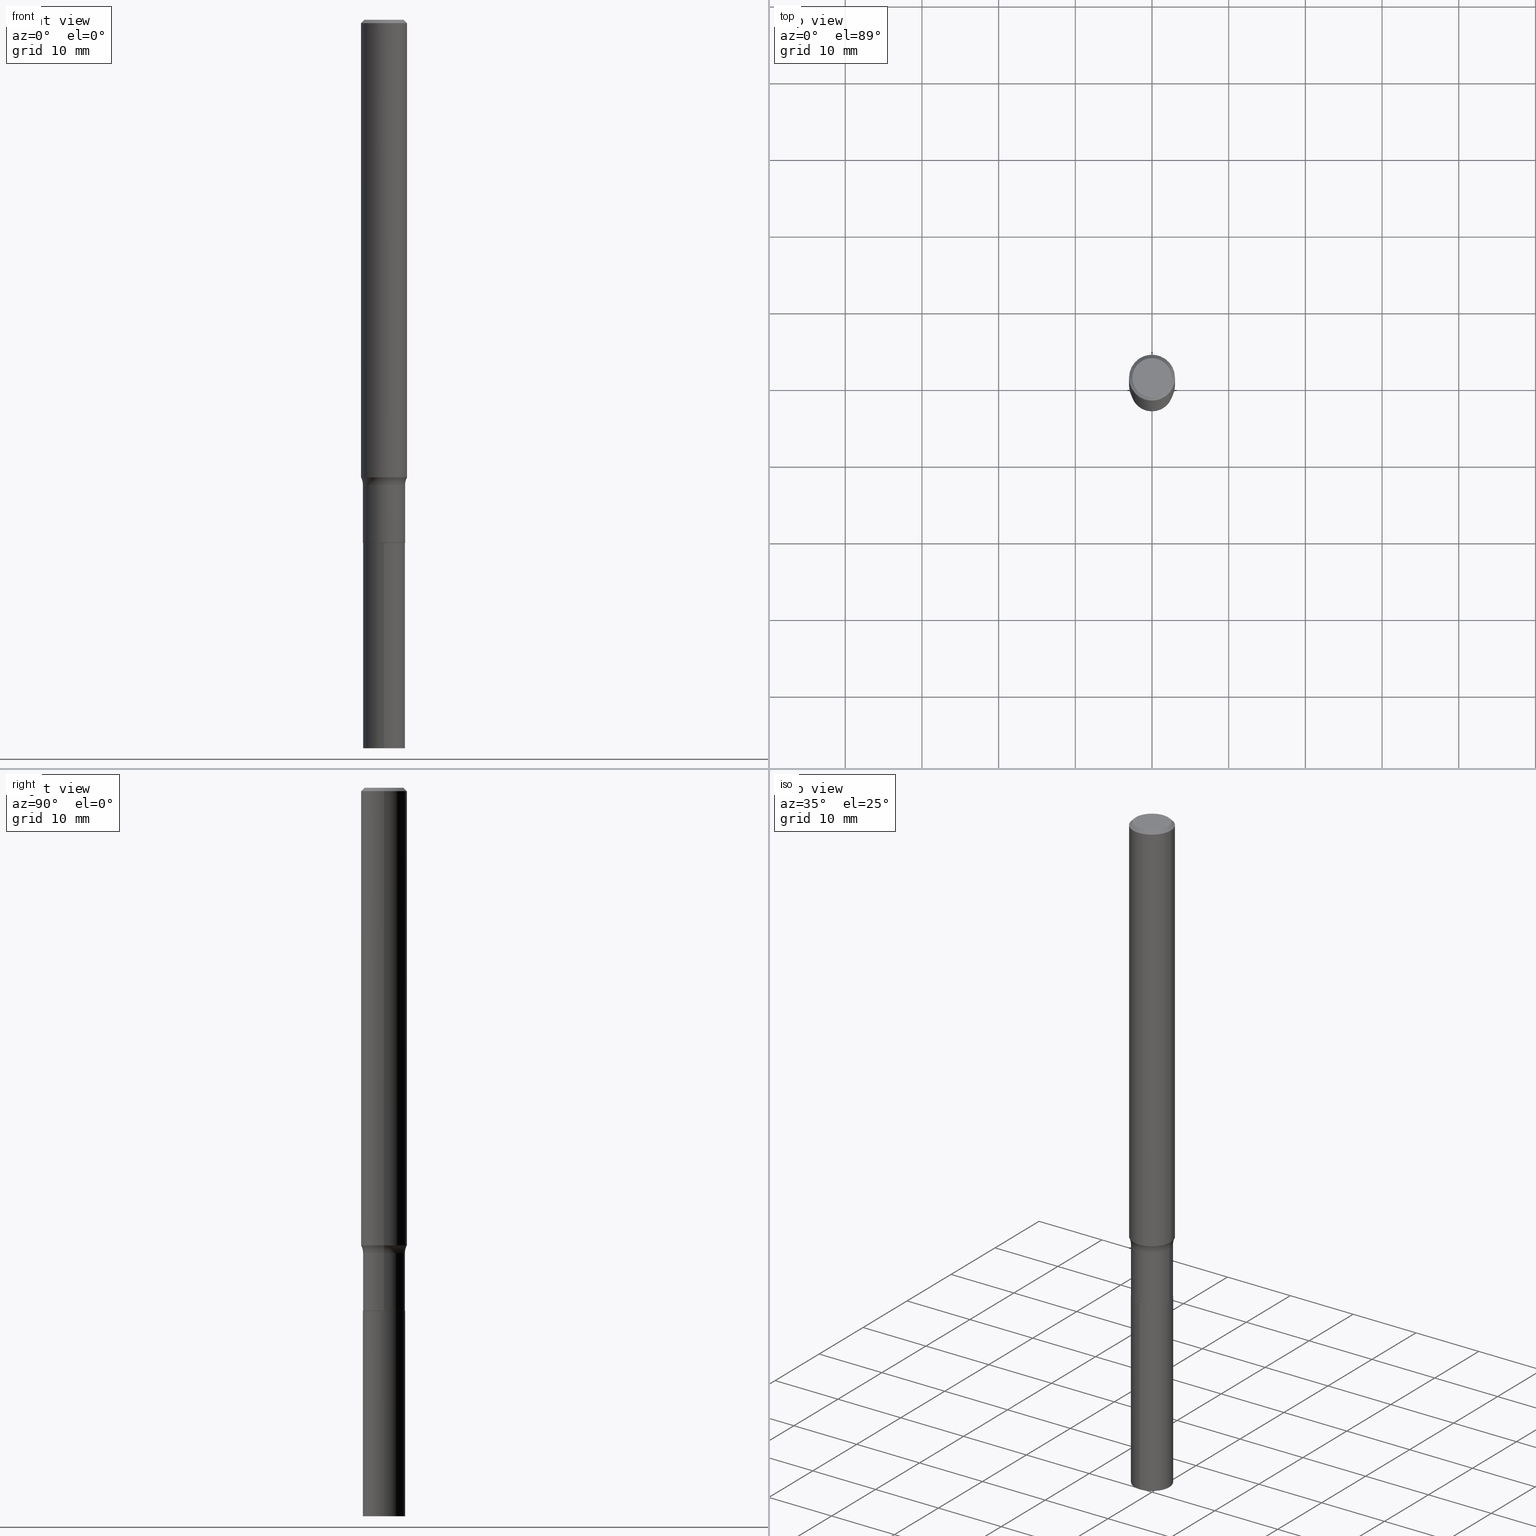
[diagram: canonical four-view strip — front | top / right | iso, engineering-drawing reading convention]
A machine part, canonical four-view strip (front | top / right | iso — engineering-drawing reading convention). The complete STEP part file that produces these views, byte-faithful:
ISO-10303-21;
HEADER;
FILE_DESCRIPTION (( 'STEP AP203' ),
    '1' );
FILE_NAME ('67841.STEP',
    '2024-04-19T16:40:41',
    ( '' ),
    ( '' ),
    'SwSTEP 2.0',
    'SolidWorks 2023',
    '' );
FILE_SCHEMA (( 'CONFIG_CONTROL_DESIGN' ));
ENDSEC;

DATA;
#1 =( NAMED_UNIT ( * ) SI_UNIT ( $, .STERADIAN. ) SOLID_ANGLE_UNIT ( ) );
#2 = EDGE_LOOP ( 'NONE', ( #228, #330, #362, #333 ) ) ;
#3 = ADVANCED_FACE ( 'NONE', ( #14 ), #323, .T. ) ;
#4 = CARTESIAN_POINT ( 'NONE',  ( -0.1181000000000001354, 8.391509709326792818E-16, -5.809262341591050090E-30 ) ) ;
#5 = LINE ( 'NONE', #418, #421 ) ;
#6 = DIRECTION ( 'NONE',  ( 1.000000000000000000, -6.982962677686266711E-15, 4.876176775795935232E-29 ) ) ;
#7 = CLOSED_SHELL ( 'NONE', ( #466, #35, #267, #52, #320, #172, #275, #30, #371, #45, #254, #3 ) ) ;
#8 = TOROIDAL_SURFACE ( 'NONE', #74, 0.1882499999999999729, 0.07999999999999996003 ) ;
#9 = EDGE_CURVE ( 'NONE', #11, #436, #130, .T. ) ;
#10 = ORIENTED_EDGE ( 'NONE', *, *, #240, .F. ) ;
#11 = VERTEX_POINT ( 'NONE', #456 ) ;
#12 = CONICAL_SURFACE ( 'NONE', #414, 0.1180999999999999966, 0.7853981633974452814 ) ;
#13 = CC_DESIGN_APPROVAL ( #378, ( #290 ) ) ;
#14 = FACE_OUTER_BOUND ( 'NONE', #231, .T. ) ;
#15 = CARTESIAN_POINT ( 'NONE',  ( 6.566572838368328165E-29, -9.375325691061615108E-15, -2.685200000000000031 ) ) ;
#16 = ORIENTED_EDGE ( 'NONE', *, *, #356, .T. ) ;
#17 = DIRECTION ( 'NONE',  ( -6.982962677686265922E-15, -1.000000000000000000, 5.047294214622195629E-15 ) ) ;
#18 = UNCERTAINTY_MEASURE_WITH_UNIT (LENGTH_MEASURE( 1.000000000000000082E-05 ), #322, 'distance_accuracy_value', 'NONE');
#19 = PRODUCT_DEFINITION ( 'UNKNOWN', '', #290, #191 ) ;
#20 = VERTEX_POINT ( 'NONE', #136 ) ;
#21 = EDGE_LOOP ( 'NONE', ( #47, #133 ) ) ;
#22 = AXIS2_PLACEMENT_3D ( 'NONE', #83, #80, #17 ) ;
#23 = DIRECTION ( 'NONE',  ( -2.445468806185136597E-29, 3.491481338843145583E-15, 1.000000000000000000 ) ) ;
#24 = CARTESIAN_POINT ( 'NONE',  ( 0.1181000000000001354, -8.246878922347490515E-16, 5.758764772215007447E-30 ) ) ;
#25 = CARTESIAN_POINT ( 'NONE',  ( -7.559057098594725883E-16, -0.1082500000000093665, -2.685199999999999587 ) ) ;
#26 = EDGE_CURVE ( 'NONE', #87, #436, #354, .T. ) ;
#27 = COORDINATED_UNIVERSAL_TIME_OFFSET ( 5, 0, .BEHIND. ) ;
#28 = CARTESIAN_POINT ( 'NONE',  ( 6.566572838368328165E-29, -9.375325691061615108E-15, -2.685200000000000031 ) ) ;
#29 = CARTESIAN_POINT ( 'NONE',  ( 6.566572838368328165E-29, -9.375325691061615108E-15, -2.685200000000000031 ) ) ;
#30 = ADVANCED_FACE ( 'NONE', ( #215 ), #312, .T. ) ;
#31 = DIRECTION ( 'NONE',  ( 6.982962677686265922E-15, 1.000000000000000000, -3.500470434373227708E-15 ) ) ;
#32 = DIRECTION ( 'NONE',  ( 1.000000000000000000, -6.982962677686272233E-15, 0.000000000000000000 ) ) ;
#33 = LINE ( 'NONE', #460, #397 ) ;
#34 = CIRCLE ( 'NONE', #391, 0.1082499999999999990 ) ;
#35 = ADVANCED_FACE ( 'NONE', ( #135 ), #12, .T. ) ;
#36 = DIRECTION ( 'NONE',  ( -6.982962677686265922E-15, -1.000000000000000000, 5.047294214622194840E-15 ) ) ;
#37 = DIRECTION ( 'NONE',  ( 1.000000000000000000, -6.982962677686267499E-15, 0.000000000000000000 ) ) ;
#38 = CARTESIAN_POINT ( 'NONE',  ( 5.839045868528251418E-29, -8.336609992755778675E-15, -2.387700000000000156 ) ) ;
#39 = CARTESIAN_POINT ( 'NONE',  ( 4.332147990156999371E-31, -6.185159191760675325E-17, -0.01771500000000012301 ) ) ;
#40 = LENGTH_MEASURE_WITH_UNIT ( LENGTH_MEASURE( 0.02539999999999999897 ), #216 );
#41 = VERTEX_POINT ( 'NONE', #176 ) ;
#42 = AXIS2_PLACEMENT_3D ( 'NONE', #315, #237, #413 ) ;
#43 = DIRECTION ( 'NONE',  ( 2.439191754325864329E-29, -3.500470434373227708E-15, -1.000000000000000000 ) ) ;
#44 = CARTESIAN_POINT ( 'NONE',  ( 7.015701749847187307E-46, -1.001656274515824970E-31, -2.868857591682589212E-17 ) ) ;
#45 = ADVANCED_FACE ( 'NONE', ( #419 ), #182, .F. ) ;
#46 = CARTESIAN_POINT ( 'NONE',  ( 9.139920139182118548E-29, -1.306832199932537301E-14, -3.740200000000000635 ) ) ;
#47 = ORIENTED_EDGE ( 'NONE', *, *, #359, .T. ) ;
#48 = DIRECTION ( 'NONE',  ( -2.439191754325864609E-29, 3.500470434373227708E-15, 1.000000000000000000 ) ) ;
#49 = LINE ( 'NONE', #280, #155 ) ;
#50 = CIRCLE ( 'NONE', #458, 0.1181000000000002742 ) ;
#51 = CC_DESIGN_APPROVAL ( #451, ( #345 ) ) ;
#52 = ADVANCED_FACE ( 'NONE', ( #106 ), #238, .F. ) ;
#53 = CALENDAR_DATE ( 2024, 19, 4 ) ;
#54 = VERTEX_POINT ( 'NONE', #412 ) ;
#55 = ORIENTED_EDGE ( 'NONE', *, *, #341, .F. ) ;
#56 = AXIS2_PLACEMENT_3D ( 'NONE', #384, #211, #113 ) ;
#57 = ORGANIZATION ( 'UNSPECIFIED', 'UNSPECIFIED', '' ) ;
#58 = PERSON_AND_ORGANIZATION ( #446, #57 ) ;
#59 = EDGE_LOOP ( 'NONE', ( #189, #232, #235, #273 ) ) ;
#60 = EDGE_CURVE ( 'NONE', #363, #324, #301, .T. ) ;
#61 = APPROVAL_DATE_TIME ( #188, #378 ) ;
#62 = DIRECTION ( 'NONE',  ( -2.445468806185136597E-29, 3.491481338843145583E-15, 1.000000000000000000 ) ) ;
#63 = ORIENTED_EDGE ( 'NONE', *, *, #138, .T. ) ;
#64 = EDGE_CURVE ( 'NONE', #430, #11, #295, .T. ) ;
#65 = CARTESIAN_POINT ( 'NONE',  ( -0.1181000000000002603, -7.363185460227517416E-15, -2.349242523483722422 ) ) ;
#66 = AXIS2_PLACEMENT_3D ( 'NONE', #348, #376, #285 ) ;
#67 = CARTESIAN_POINT ( 'NONE',  ( 6.565350103965236485E-29, -9.373579950392191238E-15, -2.684699999999999864 ) ) ;
#68 = AXIS2_PLACEMENT_3D ( 'NONE', #352, #398, #329 ) ;
#69 = PLANE ( 'NONE',  #289 ) ;
#70 = CARTESIAN_POINT ( 'NONE',  ( 5.744999309343096258E-29, -8.202336431160197980E-15, -2.349242523483722422 ) ) ;
#71 = CYLINDRICAL_SURFACE ( 'NONE', #66, 0.1181000000000001354 ) ;
#72 = CARTESIAN_POINT ( 'NONE',  ( 5.839045868528251418E-29, -8.336609992755778675E-15, -2.387700000000000156 ) ) ;
#73 = DIRECTION ( 'NONE',  ( -2.438088387897960049E-29, 3.491481338843145188E-15, 1.000000000000000000 ) ) ;
#74 = AXIS2_PLACEMENT_3D ( 'NONE', #38, #385, #353 ) ;
#75 = APPROVAL_PERSON_ORGANIZATION ( #161, #378, #86 ) ;
#76 = CC_DESIGN_PERSON_AND_ORGANIZATION_ASSIGNMENT ( #227, #269, ( #345 ) ) ;
#77 = DIRECTION ( 'NONE',  ( -6.982962677686265922E-15, -1.000000000000000000, 3.500470434373227708E-15 ) ) ;
#78 = DIRECTION ( 'NONE',  ( -2.445468806185136597E-29, 3.491481338843145583E-15, 1.000000000000000000 ) ) ;
#79 = ORIENTED_EDGE ( 'NONE', *, *, #386, .T. ) ;
#80 = DIRECTION ( 'NONE',  ( -2.439191754325864609E-29, 3.500470434373227708E-15, 1.000000000000000000 ) ) ;
#81 = AXIS2_PLACEMENT_3D ( 'NONE', #464, #454, #349 ) ;
#82 = DIRECTION ( 'NONE',  ( 1.000000000000000000, -6.982962677686266711E-15, 4.875668750515085695E-29 ) ) ;
#83 = CARTESIAN_POINT ( 'NONE',  ( 6.566572838368328165E-29, -9.375325691061615108E-15, -2.685200000000000031 ) ) ;
#84 = ORIENTED_EDGE ( 'NONE', *, *, #60, .T. ) ;
#85 = MANIFOLD_SOLID_BREP ( 'Body-Move/Copy2[2]', #7 ) ;
#86 = APPROVAL_ROLE ( '' ) ;
#87 = VERTEX_POINT ( 'NONE', #253 ) ;
#88 = MANIFOLD_SOLID_BREP ( 'Body-Move/Copy2[1]', #282 ) ;
#89 = EDGE_CURVE ( 'NONE', #236, #363, #377, .T. ) ;
#90 = PERSON_AND_ORGANIZATION ( #446, #57 ) ;
#91 = CIRCLE ( 'NONE', #197, 0.07999999999999996003 ) ;
#92 =( GEOMETRIC_REPRESENTATION_CONTEXT ( 3 ) GLOBAL_UNCERTAINTY_ASSIGNED_CONTEXT ( ( #18 ) ) GLOBAL_UNIT_ASSIGNED_CONTEXT ( ( #322, #154, #1 ) ) REPRESENTATION_CONTEXT ( 'NONE', 'WORKASPACE' ) );
#93 = DIRECTION ( 'NONE',  ( -2.439191754325864609E-29, 3.500470434373227708E-15, 1.000000000000000000 ) ) ;
#94 = MECHANICAL_CONTEXT ( 'NONE', #261, 'mechanical' ) ;
#95 = ORIENTED_EDGE ( 'NONE', *, *, #356, .F. ) ;
#96 = COORDINATED_UNIVERSAL_TIME_OFFSET ( 5, 0, .BEHIND. ) ;
#97 = EDGE_LOOP ( 'NONE', ( #151, #104, #195, #367 ) ) ;
#98 = CARTESIAN_POINT ( 'NONE',  ( -0.1180999999999999966, 7.628363003171412752E-16, -0.01771500000000012301 ) ) ;
#99 = DATE_AND_TIME ( #193, #251 ) ;
#100 = CC_DESIGN_DATE_AND_TIME_ASSIGNMENT ( #99, #229, ( #19 ) ) ;
#101 = ORIENTED_EDGE ( 'NONE', *, *, #369, .T. ) ;
#102 = AXIS2_PLACEMENT_3D ( 'NONE', #67, #169, #37 ) ;
#103 = ORIENTED_EDGE ( 'NONE', *, *, #410, .T. ) ;
#104 = ORIENTED_EDGE ( 'NONE', *, *, #196, .T. ) ;
#105 = CARTESIAN_POINT ( 'NONE',  ( -0.1082499999999999990, -8.085932460113676808E-15, -2.684699999999999864 ) ) ;
#106 = FACE_OUTER_BOUND ( 'NONE', #394, .T. ) ;
#107 = DIRECTION ( 'NONE',  ( 1.000000000000000000, -6.982962677686266711E-15, 0.000000000000000000 ) ) ;
#108 = DIRECTION ( 'NONE',  ( -6.982962677686266711E-15, -1.000000000000000000, 3.491481338843145583E-15 ) ) ;
#109 = PLANE ( 'NONE',  #184 ) ;
#110 = DIRECTION ( 'NONE',  ( 1.000000000000000000, -6.982962677686272233E-15, 0.000000000000000000 ) ) ;
#111 = CARTESIAN_POINT ( 'NONE',  ( 6.566572838368328165E-29, -9.375325691061615108E-15, -2.685200000000000031 ) ) ;
#112 = FACE_OUTER_BOUND ( 'NONE', #159, .T. ) ;
#113 = DIRECTION ( 'NONE',  ( -1.000000000000000000, 6.982962677686265922E-15, -4.876176775795935793E-29 ) ) ;
#114 = AXIS2_PLACEMENT_3D ( 'NONE', #178, #274, #107 ) ;
#115 = DIRECTION ( 'NONE',  ( -6.982962677686265922E-15, -1.000000000000000000, 5.047294214622195629E-15 ) ) ;
#116 = ORIENTED_EDGE ( 'NONE', *, *, #214, .T. ) ;
#117 = EDGE_CURVE ( 'NONE', #324, #363, #408, .T. ) ;
#118 = AXIS2_PLACEMENT_3D ( 'NONE', #72, #209, #343 ) ;
#119 = CONICAL_SURFACE ( 'NONE', #318, 0.1077499999999999986, 0.7853981633972775267 ) ;
#120 = EDGE_CURVE ( 'NONE', #201, #87, #91, .T. ) ;
#121 = ORIENTED_EDGE ( 'NONE', *, *, #447, .T. ) ;
#122 = APPROVAL_STATUS ( 'not_yet_approved' ) ;
#123 = CARTESIAN_POINT ( 'NONE',  ( 7.691625114603739196E-16, 0.1082499999999906315, -2.685200000000000475 ) ) ;
#124 = CALENDAR_DATE ( 2024, 19, 4 ) ;
#125 = ORIENTED_EDGE ( 'NONE', *, *, #171, .T. ) ;
#126 = AXIS2_PLACEMENT_3D ( 'NONE', #44, #186, #432 ) ;
#127 = DATE_TIME_ROLE ( 'classification_date' ) ;
#128 = VERTEX_POINT ( 'NONE', #375 ) ;
#129 = LINE ( 'NONE', #98, #442 ) ;
#130 = LINE ( 'NONE', #452, #137 ) ;
#131 = APPLICATION_PROTOCOL_DEFINITION ( 'international standard', 'config_control_design', 1994, #429 ) ;
#132 = ORIENTED_EDGE ( 'NONE', *, *, #60, .F. ) ;
#133 = ORIENTED_EDGE ( 'NONE', *, *, #341, .T. ) ;
#134 = EDGE_CURVE ( 'NONE', #201, #236, #223, .T. ) ;
#135 = FACE_OUTER_BOUND ( 'NONE', #199, .T. ) ;
#136 = CARTESIAN_POINT ( 'NONE',  ( 0.1003850000000000159, -7.803837484803599345E-16, -2.868857591682071522E-17 ) ) ;
#137 = VECTOR ( 'NONE', #268, 39.37007874015748143 ) ;
#138 = EDGE_CURVE ( 'NONE', #372, #299, #203, .T. ) ;
#139 = CIRCLE ( 'NONE', #210, 0.1077499999999999986 ) ;
#140 = CARTESIAN_POINT ( 'NONE',  ( 0.1882499999999999729, -9.651152716830218983E-15, -2.387700000000000156 ) ) ;
#141 = APPROVAL_DATE_TIME ( #278, #451 ) ;
#142 = DIRECTION ( 'NONE',  ( -2.445468806185136597E-29, 3.491481338843145583E-15, 1.000000000000000000 ) ) ;
#143 = CC_DESIGN_PERSON_AND_ORGANIZATION_ASSIGNMENT ( #332, #158, ( #290 ) ) ;
#144 = DIRECTION ( 'NONE',  ( 1.000000000000000000, -6.982962677686260400E-15, 0.000000000000000000 ) ) ;
#145 = CARTESIAN_POINT ( 'NONE',  ( -0.1077499999999999986, -8.607066666105995080E-15, -2.685200000000000031 ) ) ;
#146 = CARTESIAN_POINT ( 'NONE',  ( 0.1180999999999999966, -8.865394841523548556E-16, -0.01771500000000012301 ) ) ;
#147 = DIRECTION ( 'NONE',  ( -1.000000000000000000, 7.105427357601001859E-15, 0.000000000000000000 ) ) ;
#148 = CARTESIAN_POINT ( 'NONE',  ( -4.035817576828048641E-29, -3.193672832507106580E-14, -3.740200000000000635 ) ) ;
#149 = CIRCLE ( 'NONE', #118, 0.1082499999999999712 ) ;
#150 = APPROVAL_PERSON_ORGANIZATION ( #226, #288, #263 ) ;
#151 = ORIENTED_EDGE ( 'NONE', *, *, #401, .T. ) ;
#152 = ORIENTED_EDGE ( 'NONE', *, *, #64, .F. ) ;
#153 = EDGE_CURVE ( 'NONE', #236, #436, #325, .T. ) ;
#154 =( NAMED_UNIT ( * ) PLANE_ANGLE_UNIT ( ) SI_UNIT ( $, .RADIAN. ) );
#155 = VECTOR ( 'NONE', #337, 39.37007874015748143 ) ;
#156 = EDGE_CURVE ( 'NONE', #436, #87, #149, .T. ) ;
#157 = APPROVAL_DATE_TIME ( #365, #288 ) ;
#158 = PERSON_AND_ORGANIZATION_ROLE ( 'creator' ) ;
#159 = EDGE_LOOP ( 'NONE', ( #260, #287, #103, #165 ) ) ;
#160 = AXIS2_PLACEMENT_3D ( 'NONE', #15, #48, #286 ) ;
#161 = PERSON_AND_ORGANIZATION ( #446, #57 ) ;
#162 = APPROVAL_STATUS ( 'not_yet_approved' ) ;
#163 = CARTESIAN_POINT ( 'NONE',  ( 6.566572838368328165E-29, -9.375325691061615108E-15, -2.685200000000000031 ) ) ;
#164 = EDGE_LOOP ( 'NONE', ( #303, #16, #121, #10 ) ) ;
#165 = ORIENTED_EDGE ( 'NONE', *, *, #117, .T. ) ;
#166 = AXIS2_PLACEMENT_3D ( 'NONE', #46, #355, #220 ) ;
#167 = VECTOR ( 'NONE', #313, 39.37007874015748143 ) ;
#168 = ORIENTED_EDGE ( 'NONE', *, *, #214, .F. ) ;
#169 = DIRECTION ( 'NONE',  ( -2.445468806185136597E-29, 3.491481338843145583E-15, 1.000000000000000000 ) ) ;
#170 = CARTESIAN_POINT ( 'NONE',  ( -0.1077499999999999986, -8.609715893280107069E-15, -2.685200000000000031 ) ) ;
#171 = EDGE_CURVE ( 'NONE', #372, #11, #33, .T. ) ;
#172 = ADVANCED_FACE ( 'NONE', ( #416 ), #468, .T. ) ;
#173 = LINE ( 'NONE', #4, #317 ) ;
#174 = DIRECTION ( 'NONE',  ( -2.439191754325864609E-29, 3.500470434373227708E-15, 1.000000000000000000 ) ) ;
#175 = CIRCLE ( 'NONE', #166, 0.1082500000000000129 ) ;
#176 = CARTESIAN_POINT ( 'NONE',  ( 7.691625114603868372E-16, 0.1082499999999869539, -3.740200000000001079 ) ) ;
#177 = FACE_OUTER_BOUND ( 'NONE', #164, .T. ) ;
#178 = CARTESIAN_POINT ( 'NONE',  ( 4.332147990156999371E-31, -6.185159191760675325E-17, -0.01771500000000012301 ) ) ;
#179 = LINE ( 'NONE', #25, #167 ) ;
#180 = CARTESIAN_POINT ( 'NONE',  ( -0.1180999999999999966, -3.292943040606221131E-15, -0.01771500000000012301 ) ) ;
#181 = CYLINDRICAL_SURFACE ( 'NONE', #383, 0.1082499999999999990 ) ;
#182 = PLANE ( 'NONE',  #56 ) ;
#183 = DIRECTION ( 'NONE',  ( -2.445468806185136597E-29, 3.491481338843145583E-15, 1.000000000000000000 ) ) ;
#184 = AXIS2_PLACEMENT_3D ( 'NONE', #111, #43, #31 ) ;
#185 = AXIS2_PLACEMENT_3D ( 'NONE', #387, #78, #351 ) ;
#186 = DIRECTION ( 'NONE',  ( -2.445468806185136597E-29, 3.491481338843145583E-15, 1.000000000000000000 ) ) ;
#187 = EDGE_LOOP ( 'NONE', ( #79, #296, #219, #202 ) ) ;
#188 = DATE_AND_TIME ( #358, #368 ) ;
#189 = ORIENTED_EDGE ( 'NONE', *, *, #196, .F. ) ;
#190 = CIRCLE ( 'NONE', #126, 0.1003850000000000159 ) ;
#191 = DESIGN_CONTEXT ( 'detailed design', #429, 'design' ) ;
#192 = LOCAL_TIME ( 12, 40, 41.00000000000000000, #331 ) ;
#193 = CALENDAR_DATE ( 2024, 19, 4 ) ;
#194 = ORIENTED_EDGE ( 'NONE', *, *, #89, .F. ) ;
#195 = ORIENTED_EDGE ( 'NONE', *, *, #156, .F. ) ;
#196 = EDGE_CURVE ( 'NONE', #430, #87, #49, .T. ) ;
#197 = AXIS2_PLACEMENT_3D ( 'NONE', #277, #306, #147 ) ;
#198 = VECTOR ( 'NONE', #455, 39.37007874015748143 ) ;
#199 = EDGE_LOOP ( 'NONE', ( #55, #101, #84, #284 ) ) ;
#200 = APPROVAL_STATUS ( 'not_yet_approved' ) ;
#201 = VERTEX_POINT ( 'NONE', #65 ) ;
#202 = ORIENTED_EDGE ( 'NONE', *, *, #447, .F. ) ;
#203 = CIRCLE ( 'NONE', #336, 0.1077499999999999986 ) ;
#204 = APPROVAL_PERSON_ORGANIZATION ( #230, #451, #308 ) ;
#205 = CARTESIAN_POINT ( 'NONE',  ( 6.566572838368328165E-29, -9.375325691061615108E-15, -2.685200000000000031 ) ) ;
#206 = DIRECTION ( 'NONE',  ( -1.000000000000000000, 6.982962677686266711E-15, 0.000000000000000000 ) ) ;
#207 = DIRECTION ( 'NONE',  ( -2.445468806185136597E-29, 3.491481338843145583E-15, 1.000000000000000000 ) ) ;
#208 = FACE_OUTER_BOUND ( 'NONE', #270, .T. ) ;
#209 = DIRECTION ( 'NONE',  ( -2.445468806185136597E-29, 3.491481338843145583E-15, 1.000000000000000000 ) ) ;
#210 = AXIS2_PLACEMENT_3D ( 'NONE', #205, #23, #32 ) ;
#211 = DIRECTION ( 'NONE',  ( 2.438088387897960049E-29, -3.491481338843145188E-15, -1.000000000000000000 ) ) ;
#212 = CARTESIAN_POINT ( 'NONE',  ( 0.1082499999999999712, -9.092515702615315753E-15, -2.387700000000000156 ) ) ;
#213 = CARTESIAN_POINT ( 'NONE',  ( 5.744999309343096258E-29, -8.202336431160197980E-15, -2.349242523483722422 ) ) ;
#214 = EDGE_CURVE ( 'NONE', #299, #372, #139, .T. ) ;
#215 = FACE_OUTER_BOUND ( 'NONE', #2, .T. ) ;
#216 =( LENGTH_UNIT ( ) NAMED_UNIT ( * ) SI_UNIT ( $, .METRE. ) );
#217 = AXIS2_PLACEMENT_3D ( 'NONE', #70, #310, #339 ) ;
#218 = CC_DESIGN_APPROVAL ( #288, ( #19 ) ) ;
#219 = ORIENTED_EDGE ( 'NONE', *, *, #420, .F. ) ;
#220 = DIRECTION ( 'NONE',  ( -6.982962677686265922E-15, -1.000000000000000000, 5.047294214622194840E-15 ) ) ;
#221 = COORDINATED_UNIVERSAL_TIME_OFFSET ( 5, 0, .BEHIND. ) ;
#222 = ORIENTED_EDGE ( 'NONE', *, *, #462, .F. ) ;
#223 = CIRCLE ( 'NONE', #217, 0.1181000000000002742 ) ;
#224 = CIRCLE ( 'NONE', #185, 0.1082499999999999990 ) ;
#225 = CARTESIAN_POINT ( 'NONE',  ( -7.559057098594470489E-16, -0.1082500000000130719, -3.740200000000000191 ) ) ;
#226 = PERSON_AND_ORGANIZATION ( #446, #57 ) ;
#227 = PERSON_AND_ORGANIZATION ( #446, #57 ) ;
#228 = ORIENTED_EDGE ( 'NONE', *, *, #304, .F. ) ;
#229 = DATE_TIME_ROLE ( 'creation_date' ) ;
#230 = PERSON_AND_ORGANIZATION ( #446, #57 ) ;
#231 = EDGE_LOOP ( 'NONE', ( #222, #116, #125, #152 ) ) ;
#232 = ORIENTED_EDGE ( 'NONE', *, *, #64, .T. ) ;
#233 = AXIS2_PLACEMENT_3D ( 'NONE', #140, #108, #243 ) ;
#234 = AXIS2_PLACEMENT_3D ( 'NONE', #258, #392, #36 ) ;
#235 = ORIENTED_EDGE ( 'NONE', *, *, #9, .T. ) ;
#236 = VERTEX_POINT ( 'NONE', #407 ) ;
#237 = DIRECTION ( 'NONE',  ( -2.445468806185136597E-29, 3.491481338843145583E-15, 1.000000000000000000 ) ) ;
#238 = TOROIDAL_SURFACE ( 'NONE', #433, 0.1882499999999999729, 0.07999999999999996003 ) ;
#239 = CONICAL_SURFACE ( 'NONE', #423, 0.1180999999999999966, 0.7853981633974452814 ) ;
#240 = EDGE_CURVE ( 'NONE', #54, #128, #34, .T. ) ;
#241 = DIRECTION ( 'NONE',  ( 2.445468806185136597E-29, -3.491481338843145583E-15, -1.000000000000000000 ) ) ;
#242 = CC_DESIGN_PERSON_AND_ORGANIZATION_ASSIGNMENT ( #90, #405, ( #246 ) ) ;
#243 = DIRECTION ( 'NONE',  ( 1.000000000000000000, -6.982962677686262766E-15, 0.000000000000000000 ) ) ;
#244 = FACE_OUTER_BOUND ( 'NONE', #443, .T. ) ;
#245 = CARTESIAN_POINT ( 'NONE',  ( 0.000000000000000000, 0.000000000000000000, 0.000000000000000000 ) ) ;
#246 = PRODUCT ( '67841', '67841', '', ( #94 ) ) ;
#247 = DIRECTION ( 'NONE',  ( 0.7071067811865453523, -7.319954787623248157E-15, -0.7071067811865496822 ) ) ;
#248 = CARTESIAN_POINT ( 'NONE',  ( 5.839045868528251418E-29, -8.336609992755778675E-15, -2.387700000000000156 ) ) ;
#249 = DIRECTION ( 'NONE',  ( 1.000000000000000000, -6.982962677686266711E-15, 4.876176775795935232E-29 ) ) ;
#250 = AXIS2_PLACEMENT_3D ( 'NONE', #425, #395, #6 ) ;
#251 = LOCAL_TIME ( 12, 40, 41.00000000000000000, #96 ) ;
#252 = CARTESIAN_POINT ( 'NONE',  ( 0.1077499999999999986, -1.012773991958231076E-14, -2.685200000000000031 ) ) ;
#253 = CARTESIAN_POINT ( 'NONE',  ( -0.1082499999999999712, -8.085932460113676808E-15, -2.387700000000000156 ) ) ;
#254 = ADVANCED_FACE ( 'NONE', ( #449 ), #69, .F. ) ;
#255 = FACE_OUTER_BOUND ( 'NONE', #400, .T. ) ;
#256 = ORIENTED_EDGE ( 'NONE', *, *, #120, .F. ) ;
#257 = DIRECTION ( 'NONE',  ( -2.445468806185136597E-29, 3.491481338843145583E-15, 1.000000000000000000 ) ) ;
#258 = CARTESIAN_POINT ( 'NONE',  ( 9.139920139182118548E-29, -1.306832199932537301E-14, -3.740200000000000635 ) ) ;
#259 = APPLICATION_PROTOCOL_DEFINITION ( 'international standard', 'config_control_design', 1994, #261 ) ;
#260 = ORIENTED_EDGE ( 'NONE', *, *, #369, .F. ) ;
#261 = APPLICATION_CONTEXT ( 'configuration controlled 3d designs of mechanical parts and assemblies' ) ;
#262 = EDGE_LOOP ( 'NONE', ( #393, #370 ) ) ;
#263 = APPROVAL_ROLE ( '' ) ;
#264 = EDGE_CURVE ( 'NONE', #236, #201, #50, .T. ) ;
#265 = ORIENTED_EDGE ( 'NONE', *, *, #264, .T. ) ;
#266 = ORIENTED_EDGE ( 'NONE', *, *, #120, .T. ) ;
#267 = ADVANCED_FACE ( 'NONE', ( #255 ), #71, .T. ) ;
#268 = DIRECTION ( 'NONE',  ( -2.445468806185136877E-29, 3.491481338843145188E-15, 1.000000000000000000 ) ) ;
#269 = PERSON_AND_ORGANIZATION_ROLE ( 'classification_officer' ) ;
#270 = EDGE_LOOP ( 'NONE', ( #256, #453, #326, #409 ) ) ;
#271 = DIMENSIONAL_EXPONENTS ( 1.000000000000000000, 0.000000000000000000, 0.000000000000000000, 0.000000000000000000, 0.000000000000000000, 0.000000000000000000, 0.000000000000000000 ) ;
#272 = SECURITY_CLASSIFICATION_LEVEL ( 'unclassified' ) ;
#273 = ORIENTED_EDGE ( 'NONE', *, *, #26, .F. ) ;
#274 = DIRECTION ( 'NONE',  ( -2.445468806185136597E-29, 3.491481338843145583E-15, 1.000000000000000000 ) ) ;
#275 = ADVANCED_FACE ( 'NONE', ( #208 ), #8, .F. ) ;
#276 = PRODUCT_DEFINITION_SHAPE ( 'NONE', 'NONE',  #19 ) ;
#277 = CARTESIAN_POINT ( 'NONE',  ( -0.1882499999999999729, -6.999013292687390662E-15, -2.387700000000000156 ) ) ;
#278 = DATE_AND_TIME ( #417, #467 ) ;
#279 = DIRECTION ( 'NONE',  ( -2.445468806185136597E-29, 3.491481338843145583E-15, 1.000000000000000000 ) ) ;
#280 = CARTESIAN_POINT ( 'NONE',  ( -0.1082499999999999851, 7.691625114603083455E-16, -5.324747235200934608E-30 ) ) ;
#281 = DIRECTION ( 'NONE',  ( 0.7071067811864267805, -2.468850131080992517E-15, 0.7071067811866682540 ) ) ;
#282 = CLOSED_SHELL ( 'NONE', ( #431, #334, #389, #297 ) ) ;
#283 = VECTOR ( 'NONE', #338, 39.37007874015748143 ) ;
#284 = ORIENTED_EDGE ( 'NONE', *, *, #410, .F. ) ;
#285 = DIRECTION ( 'NONE',  ( 1.000000000000000000, -6.982962677686266711E-15, 4.876176775795936353E-29 ) ) ;
#286 = DIRECTION ( 'NONE',  ( -6.982962677686265922E-15, -1.000000000000000000, 5.047294214622195629E-15 ) ) ;
#287 = ORIENTED_EDGE ( 'NONE', *, *, #359, .F. ) ;
#288 = APPROVAL ( #200, 'UNSPECIFIED' ) ;
#289 = AXIS2_PLACEMENT_3D ( 'NONE', #28, #73, #461 ) ;
#290 = PRODUCT_DEFINITION_FORMATION_WITH_SPECIFIED_SOURCE ( 'ANY', '', #246, .NOT_KNOWN. ) ;
#291 = EDGE_LOOP ( 'NONE', ( #448, #168 ) ) ;
#292 = PERSON_AND_ORGANIZATION_ROLE ( 'design_supplier' ) ;
#293 = ORIENTED_EDGE ( 'NONE', *, *, #171, .F. ) ;
#294 = DATE_AND_TIME ( #124, #399 ) ;
#295 = CIRCLE ( 'NONE', #102, 0.1082499999999999990 ) ;
#296 = ORIENTED_EDGE ( 'NONE', *, *, #404, .T. ) ;
#297 = ADVANCED_FACE ( 'NONE', ( #342 ), #109, .F. ) ;
#298 = DIRECTION ( 'NONE',  ( 1.000000000000000000, -6.982962677686272233E-15, 0.000000000000000000 ) ) ;
#299 = VERTEX_POINT ( 'NONE', #145 ) ;
#300 = ORIENTED_EDGE ( 'NONE', *, *, #401, .F. ) ;
#301 = CIRCLE ( 'NONE', #42, 0.1180999999999999966 ) ;
#302 = CC_DESIGN_SECURITY_CLASSIFICATION ( #345, ( #290 ) ) ;
#303 = ORIENTED_EDGE ( 'NONE', *, *, #404, .F. ) ;
#304 = EDGE_CURVE ( 'NONE', #201, #324, #173, .T. ) ;
#305 = CARTESIAN_POINT ( 'NONE',  ( 6.566572838368328165E-29, -9.375325691061615108E-15, -2.685200000000000031 ) ) ;
#306 = DIRECTION ( 'NONE',  ( 7.105427357601001859E-15, 1.000000000000000000, -3.491481338843145583E-15 ) ) ;
#307 = DIRECTION ( 'NONE',  ( -2.445468806185136597E-29, 3.491481338843145583E-15, 1.000000000000000000 ) ) ;
#308 = APPROVAL_ROLE ( '' ) ;
#309 = AXIS2_PLACEMENT_3D ( 'NONE', #148, #422, #77 ) ;
#310 = DIRECTION ( 'NONE',  ( -2.445468806185136597E-29, 3.491481338843145583E-15, 1.000000000000000000 ) ) ;
#311 = CARTESIAN_POINT ( 'NONE',  ( 6.566572838368328165E-29, -9.375325691061615108E-15, -2.685200000000000031 ) ) ;
#312 = CYLINDRICAL_SURFACE ( 'NONE', #81, 0.1181000000000001354 ) ;
#313 = DIRECTION ( 'NONE',  ( -2.439191754325864609E-29, 3.500470434373227708E-15, 1.000000000000000000 ) ) ;
#314 = FACE_OUTER_BOUND ( 'NONE', #396, .T. ) ;
#315 = CARTESIAN_POINT ( 'NONE',  ( 4.332147990156999371E-31, -6.185159191760675325E-17, -0.01771500000000012301 ) ) ;
#316 = CARTESIAN_POINT ( 'NONE',  ( -0.1003850000000000159, 7.319105043583384717E-16, -2.868857591683090262E-17 ) ) ;
#317 = VECTOR ( 'NONE', #321, 39.37007874015748143 ) ;
#318 = AXIS2_PLACEMENT_3D ( 'NONE', #357, #183, #426 ) ;
#319 = ORIENTED_EDGE ( 'NONE', *, *, #386, .F. ) ;
#320 = ADVANCED_FACE ( 'NONE', ( #350 ), #459, .T. ) ;
#321 = DIRECTION ( 'NONE',  ( -2.445468806185136877E-29, 3.491481338843145188E-15, 1.000000000000000000 ) ) ;
#322 =( CONVERSION_BASED_UNIT ( 'INCH', #40 ) LENGTH_UNIT ( ) NAMED_UNIT ( #271 ) );
#323 = CONICAL_SURFACE ( 'NONE', #440, 0.1077499999999999986, 0.7853981633972775267 ) ;
#324 = VERTEX_POINT ( 'NONE', #180 ) ;
#325 = CIRCLE ( 'NONE', #233, 0.07999999999999996003 ) ;
#326 = ORIENTED_EDGE ( 'NONE', *, *, #153, .T. ) ;
#327 = VECTOR ( 'NONE', #93, 39.37007874015748143 ) ;
#328 = FACE_OUTER_BOUND ( 'NONE', #187, .T. ) ;
#329 = DIRECTION ( 'NONE',  ( 1.000000000000000000, 0.000000000000000000, 0.000000000000000000 ) ) ;
#330 = ORIENTED_EDGE ( 'NONE', *, *, #134, .T. ) ;
#331 = COORDINATED_UNIVERSAL_TIME_OFFSET ( 5, 0, .BEHIND. ) ;
#332 = PERSON_AND_ORGANIZATION ( #446, #57 ) ;
#333 = ORIENTED_EDGE ( 'NONE', *, *, #117, .F. ) ;
#334 = ADVANCED_FACE ( 'NONE', ( #314 ), #465, .F. ) ;
#335 = VERTEX_POINT ( 'NONE', #316 ) ;
#336 = AXIS2_PLACEMENT_3D ( 'NONE', #29, #307, #110 ) ;
#337 = DIRECTION ( 'NONE',  ( -2.445468806185136877E-29, 3.491481338843145188E-15, 1.000000000000000000 ) ) ;
#338 = DIRECTION ( 'NONE',  ( -2.445468806185136877E-29, 3.491481338843145188E-15, 1.000000000000000000 ) ) ;
#339 = DIRECTION ( 'NONE',  ( 1.000000000000000000, -6.982962677686273021E-15, 0.000000000000000000 ) ) ;
#340 = SHAPE_DEFINITION_REPRESENTATION ( #276, #435 ) ;
#341 = EDGE_CURVE ( 'NONE', #20, #335, #382, .T. ) ;
#342 = FACE_OUTER_BOUND ( 'NONE', #262, .T. ) ;
#343 = DIRECTION ( 'NONE',  ( 1.000000000000000000, -6.982962677686260400E-15, 0.000000000000000000 ) ) ;
#344 = CC_DESIGN_DATE_AND_TIME_ASSIGNMENT ( #294, #127, ( #345 ) ) ;
#345 = SECURITY_CLASSIFICATION ( '', '', #272 ) ;
#346 = DIRECTION ( 'NONE',  ( -1.000000000000000000, 6.982962677686266711E-15, 0.000000000000000000 ) ) ;
#347 = DIRECTION ( 'NONE',  ( 1.000000000000000000, -6.982962677686268288E-15, 4.883557194083114022E-29 ) ) ;
#348 = CARTESIAN_POINT ( 'NONE',  ( 0.000000000000000000, 0.000000000000000000, 0.000000000000000000 ) ) ;
#349 = DIRECTION ( 'NONE',  ( 1.000000000000000000, -6.982962677686266711E-15, 4.876176775795936353E-29 ) ) ;
#350 = FACE_OUTER_BOUND ( 'NONE', #97, .T. ) ;
#351 = DIRECTION ( 'NONE',  ( 1.000000000000000000, -6.982962677686267499E-15, 0.000000000000000000 ) ) ;
#352 = CARTESIAN_POINT ( 'NONE',  ( 0.000000000000000000, 0.000000000000000000, 0.000000000000000000 ) ) ;
#353 = DIRECTION ( 'NONE',  ( 1.000000000000000000, -6.982962677686268288E-15, 4.883557194083114022E-29 ) ) ;
#354 = CIRCLE ( 'NONE', #450, 0.1082499999999999712 ) ;
#355 = DIRECTION ( 'NONE',  ( -2.439191754325864609E-29, 3.500470434373227708E-15, 1.000000000000000000 ) ) ;
#356 = EDGE_CURVE ( 'NONE', #41, #406, #175, .T. ) ;
#357 = CARTESIAN_POINT ( 'NONE',  ( 6.566572838368328165E-29, -9.375325691061615108E-15, -2.685200000000000031 ) ) ;
#358 = CALENDAR_DATE ( 2024, 19, 4 ) ;
#359 = EDGE_CURVE ( 'NONE', #335, #20, #190, .T. ) ;
#360 = AXIS2_PLACEMENT_3D ( 'NONE', #245, #379, #249 ) ;
#361 = CIRCLE ( 'NONE', #160, 0.1082499999999999990 ) ;
#362 = ORIENTED_EDGE ( 'NONE', *, *, #89, .T. ) ;
#363 = VERTEX_POINT ( 'NONE', #146 ) ;
#364 = DIRECTION ( 'NONE',  ( -0.7071067811865453523, 2.468850131082234184E-15, -0.7071067811865496822 ) ) ;
#365 = DATE_AND_TIME ( #53, #192 ) ;
#366 = AXIS2_PLACEMENT_3D ( 'NONE', #390, #257, #82 ) ;
#367 = ORIENTED_EDGE ( 'NONE', *, *, #9, .F. ) ;
#368 = LOCAL_TIME ( 12, 40, 41.00000000000000000, #221 ) ;
#369 = EDGE_CURVE ( 'NONE', #20, #363, #5, .T. ) ;
#370 = ORIENTED_EDGE ( 'NONE', *, *, #240, .T. ) ;
#371 = ADVANCED_FACE ( 'NONE', ( #112 ), #239, .T. ) ;
#372 = VERTEX_POINT ( 'NONE', #252 ) ;
#373 = CC_DESIGN_PERSON_AND_ORGANIZATION_ASSIGNMENT ( #402, #437, ( #19 ) ) ;
#374 = DIRECTION ( 'NONE',  ( -6.982962677686265922E-15, -1.000000000000000000, 5.047294214622195629E-15 ) ) ;
#375 = CARTESIAN_POINT ( 'NONE',  ( -7.559057098594725883E-16, -0.1082500000000093665, -2.685199999999999587 ) ) ;
#376 = DIRECTION ( 'NONE',  ( -2.445468806185136597E-29, 3.491481338843145583E-15, 1.000000000000000000 ) ) ;
#377 = LINE ( 'NONE', #24, #283 ) ;
#378 = APPROVAL ( #122, 'UNSPECIFIED' ) ;
#379 = DIRECTION ( 'NONE',  ( -2.445468806185136597E-29, 3.491481338843145583E-15, 1.000000000000000000 ) ) ;
#380 = CARTESIAN_POINT ( 'NONE',  ( 4.332147990156999371E-31, -6.185159191760675325E-17, -0.01771500000000012301 ) ) ;
#381 = CARTESIAN_POINT ( 'NONE',  ( 5.839045868528251418E-29, -8.336609992755778675E-15, -2.387700000000000156 ) ) ;
#382 = CIRCLE ( 'NONE', #366, 0.1003850000000000159 ) ;
#383 = AXIS2_PLACEMENT_3D ( 'NONE', #311, #463, #115 ) ;
#384 = CARTESIAN_POINT ( 'NONE',  ( 3.507850874923593654E-46, -5.008281372579124849E-32, -1.434428795841294606E-17 ) ) ;
#385 = DIRECTION ( 'NONE',  ( -2.445468806185136597E-29, 3.491481338843145583E-15, 1.000000000000000000 ) ) ;
#386 = EDGE_CURVE ( 'NONE', #406, #41, #441, .T. ) ;
#387 = CARTESIAN_POINT ( 'NONE',  ( 6.565350103965236485E-29, -9.373579950392191238E-15, -2.684699999999999864 ) ) ;
#388 = ORIENTED_EDGE ( 'NONE', *, *, #304, .T. ) ;
#389 = ADVANCED_FACE ( 'NONE', ( #177 ), #181, .T. ) ;
#390 = CARTESIAN_POINT ( 'NONE',  ( 7.015701749847187307E-46, -1.001656274515824970E-31, -2.868857591682589212E-17 ) ) ;
#391 = AXIS2_PLACEMENT_3D ( 'NONE', #305, #174, #374 ) ;
#392 = DIRECTION ( 'NONE',  ( -2.439191754325864609E-29, 3.500470434373227708E-15, 1.000000000000000000 ) ) ;
#393 = ORIENTED_EDGE ( 'NONE', *, *, #420, .T. ) ;
#394 = EDGE_LOOP ( 'NONE', ( #403, #266, #411, #439 ) ) ;
#395 = DIRECTION ( 'NONE',  ( -2.445468806185136597E-29, 3.491481338843145583E-15, 1.000000000000000000 ) ) ;
#396 = EDGE_LOOP ( 'NONE', ( #319, #95 ) ) ;
#397 = VECTOR ( 'NONE', #281, 39.37007874015748143 ) ;
#398 = DIRECTION ( 'NONE',  ( 0.000000000000000000, 0.000000000000000000, 1.000000000000000000 ) ) ;
#399 = LOCAL_TIME ( 12, 40, 41.00000000000000000, #438 ) ;
#400 = EDGE_LOOP ( 'NONE', ( #265, #388, #132, #194 ) ) ;
#401 = EDGE_CURVE ( 'NONE', #11, #430, #224, .T. ) ;
#402 = PERSON_AND_ORGANIZATION ( #446, #57 ) ;
#403 = ORIENTED_EDGE ( 'NONE', *, *, #134, .F. ) ;
#404 = EDGE_CURVE ( 'NONE', #41, #54, #444, .T. ) ;
#405 = PERSON_AND_ORGANIZATION_ROLE ( 'design_owner' ) ;
#406 = VERTEX_POINT ( 'NONE', #225 ) ;
#407 = CARTESIAN_POINT ( 'NONE',  ( 0.1181000000000002603, -9.027024323394947820E-15, -2.349242523483722422 ) ) ;
#408 = CIRCLE ( 'NONE', #114, 0.1180999999999999966 ) ;
#409 = ORIENTED_EDGE ( 'NONE', *, *, #156, .T. ) ;
#410 = EDGE_CURVE ( 'NONE', #335, #324, #129, .T. ) ;
#411 = ORIENTED_EDGE ( 'NONE', *, *, #26, .T. ) ;
#412 = CARTESIAN_POINT ( 'NONE',  ( 7.691625114603999520E-16, 0.1082499999999906315, -2.685200000000000475 ) ) ;
#413 = DIRECTION ( 'NONE',  ( 1.000000000000000000, -6.982962677686266711E-15, 0.000000000000000000 ) ) ;
#414 = AXIS2_PLACEMENT_3D ( 'NONE', #39, #241, #206 ) ;
#415 = CYLINDRICAL_SURFACE ( 'NONE', #22, 0.1082499999999999990 ) ;
#416 = FACE_OUTER_BOUND ( 'NONE', #59, .T. ) ;
#417 = CALENDAR_DATE ( 2024, 19, 4 ) ;
#418 = CARTESIAN_POINT ( 'NONE',  ( 0.1180999999999999966, -8.720764054544246253E-16, -0.01771500000000012301 ) ) ;
#419 = FACE_OUTER_BOUND ( 'NONE', #21, .T. ) ;
#420 = EDGE_CURVE ( 'NONE', #128, #54, #361, .T. ) ;
#421 = VECTOR ( 'NONE', #247, 39.37007874015748143 ) ;
#422 = DIRECTION ( 'NONE',  ( -2.439191754325864329E-29, 3.500470434373227708E-15, 1.000000000000000000 ) ) ;
#423 = AXIS2_PLACEMENT_3D ( 'NONE', #380, #424, #346 ) ;
#424 = DIRECTION ( 'NONE',  ( 2.445468806185136597E-29, -3.491481338843145583E-15, -1.000000000000000000 ) ) ;
#425 = CARTESIAN_POINT ( 'NONE',  ( 0.000000000000000000, 0.000000000000000000, 0.000000000000000000 ) ) ;
#426 = DIRECTION ( 'NONE',  ( 1.000000000000000000, -6.982962677686272233E-15, 0.000000000000000000 ) ) ;
#427 = PRODUCT_RELATED_PRODUCT_CATEGORY ( 'detail', '', ( #246 ) ) ;
#428 = DIRECTION ( 'NONE',  ( 1.000000000000000000, -6.982962677686273021E-15, 0.000000000000000000 ) ) ;
#429 = APPLICATION_CONTEXT ( 'configuration controlled 3d designs of mechanical parts and assemblies' ) ;
#430 = VERTEX_POINT ( 'NONE', #105 ) ;
#431 = ADVANCED_FACE ( 'NONE', ( #328 ), #415, .T. ) ;
#432 = DIRECTION ( 'NONE',  ( 1.000000000000000000, -6.982962677686266711E-15, 4.875668750515085695E-29 ) ) ;
#433 = AXIS2_PLACEMENT_3D ( 'NONE', #248, #207, #347 ) ;
#434 = CC_DESIGN_PERSON_AND_ORGANIZATION_ASSIGNMENT ( #58, #292, ( #290 ) ) ;
#435 = ADVANCED_BREP_SHAPE_REPRESENTATION ( '67841', ( #88, #85, #68 ), #92 ) ;
#436 = VERTEX_POINT ( 'NONE', #212 ) ;
#437 = PERSON_AND_ORGANIZATION_ROLE ( 'creator' ) ;
#438 = COORDINATED_UNIVERSAL_TIME_OFFSET ( 5, 0, .BEHIND. ) ;
#439 = ORIENTED_EDGE ( 'NONE', *, *, #153, .F. ) ;
#440 = AXIS2_PLACEMENT_3D ( 'NONE', #163, #62, #298 ) ;
#441 = CIRCLE ( 'NONE', #234, 0.1082500000000000129 ) ;
#442 = VECTOR ( 'NONE', #364, 39.37007874015748143 ) ;
#443 = EDGE_LOOP ( 'NONE', ( #63, #445, #300, #293 ) ) ;
#444 = LINE ( 'NONE', #123, #327 ) ;
#445 = ORIENTED_EDGE ( 'NONE', *, *, #462, .T. ) ;
#446 = PERSON ( 'UNSPECIFIED', 'UNSPECIFIED', 'UNSPECIFIED', ('UNSPECIFIED'), ('UNSPECIFIED'), ('UNSPECIFIED') ) ;
#447 = EDGE_CURVE ( 'NONE', #406, #128, #179, .T. ) ;
#448 = ORIENTED_EDGE ( 'NONE', *, *, #138, .F. ) ;
#449 = FACE_OUTER_BOUND ( 'NONE', #291, .T. ) ;
#450 = AXIS2_PLACEMENT_3D ( 'NONE', #381, #279, #144 ) ;
#451 = APPROVAL ( #162, 'UNSPECIFIED' ) ;
#452 = CARTESIAN_POINT ( 'NONE',  ( 0.1082499999999999851, -7.559057098595382610E-16, 5.278461359799099291E-30 ) ) ;
#453 = ORIENTED_EDGE ( 'NONE', *, *, #264, .F. ) ;
#454 = DIRECTION ( 'NONE',  ( -2.445468806185136597E-29, 3.491481338843145583E-15, 1.000000000000000000 ) ) ;
#455 = DIRECTION ( 'NONE',  ( -0.7071067811864267805, 7.493145998869918709E-15, 0.7071067811866682540 ) ) ;
#456 = CARTESIAN_POINT ( 'NONE',  ( 0.1082499999999999990, -1.012948566025172989E-14, -2.684699999999999864 ) ) ;
#457 = LINE ( 'NONE', #170, #198 ) ;
#458 = AXIS2_PLACEMENT_3D ( 'NONE', #213, #142, #428 ) ;
#459 = CYLINDRICAL_SURFACE ( 'NONE', #360, 0.1082499999999999851 ) ;
#460 = CARTESIAN_POINT ( 'NONE',  ( 0.1077499999999999986, -1.012773991958231076E-14, -2.685200000000000031 ) ) ;
#461 = DIRECTION ( 'NONE',  ( 1.000000000000000000, -6.982962677686265922E-15, 4.876176775795935793E-29 ) ) ;
#462 = EDGE_CURVE ( 'NONE', #299, #430, #457, .T. ) ;
#463 = DIRECTION ( 'NONE',  ( -2.439191754325864609E-29, 3.500470434373227708E-15, 1.000000000000000000 ) ) ;
#464 = CARTESIAN_POINT ( 'NONE',  ( 0.000000000000000000, 0.000000000000000000, 0.000000000000000000 ) ) ;
#465 = PLANE ( 'NONE',  #309 ) ;
#466 = ADVANCED_FACE ( 'NONE', ( #244 ), #119, .T. ) ;
#467 = LOCAL_TIME ( 12, 40, 41.00000000000000000, #27 ) ;
#468 = CYLINDRICAL_SURFACE ( 'NONE', #250, 0.1082499999999999851 ) ;
ENDSEC;
END-ISO-10303-21;
